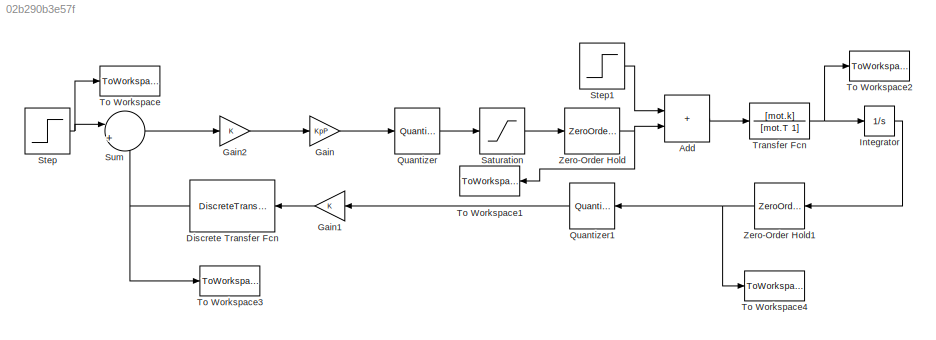
MODEL slx_02b290b3e57f
KIND model
CONFIG AbsTol = auto
CONFIG EnableMultiTasking = off
CONFIG FixedStep = auto
CONFIG MaxStep = 0.001
CONFIG MinStep = auto
CONFIG RelTol = 1e-3
CONFIG SampleTimeConstraint = Unconstrained
CONFIG SolverName = ode45
CONFIG StartTime = 0.0
CONFIG StopTime = 1
BLOCK [Sum] Add
  IconShape = rectangular
  Ports = [2, 1]
BLOCK [DiscreteTransferFcn] Discrete Transfer Fcn
  Denominator = den
  InputPortMap = u0
  Numerator = num
  Ports = [1, 1]
BLOCK [Gain] Gain
  Gain = KpP
BLOCK [Gain] Gain1
BLOCK [Gain] Gain2
BLOCK [Integrator] Integrator
  InitialCondition = w0
  Ports = [1, 1]
BLOCK [Quantizer] Quantizer
  QuantizationInterval = 20 / (2^16 - 1)
BLOCK [Quantizer] Quantizer1
  QuantizationInterval = 2 * pi / 2000
BLOCK [Saturate] Saturation
  LowerLimit = -10
  UpperLimit = 10
BLOCK [Step] Step
  After = ref.A
  SampleTime = Ts
  Time = ref.t
BLOCK [Step] Step1
  After = d.A
  SampleTime = 0
  Time = d.t
BLOCK [Sum] Sum
  Inputs = |+-
  Ports = [2, 1]
BLOCK [ToWorkspace] To Workspace
  FixptAsFi = on
  MaxDataPoints = inf
  Ports = [1]
  SampleTime = -1
  SaveFormat = Timeseries
  VariableName = w_star
BLOCK [ToWorkspace] To Workspace1
  FixptAsFi = on
  MaxDataPoints = inf
  Ports = [1]
  SampleTime = -1
  SaveFormat = Timeseries
  VariableName = u
BLOCK [ToWorkspace] To Workspace2
  FixptAsFi = on
  MaxDataPoints = inf
  Ports = [1]
  SampleTime = -1
  SaveFormat = Timeseries
  VariableName = w
BLOCK [ToWorkspace] To Workspace3
  FixptAsFi = on
  MaxDataPoints = inf
  Ports = [1]
  SampleTime = -1
  SaveFormat = Timeseries
  VariableName = wm
BLOCK [ToWorkspace] To Workspace4
  FixptAsFi = on
  MaxDataPoints = inf
  Ports = [1]
  SampleTime = -1
  SaveFormat = Timeseries
  VariableName = theta
BLOCK [TransferFcn] Transfer Fcn
  Denominator = [mot.T 1]
  Numerator = [mot.k]
BLOCK [ZeroOrderHold] Zero-Order Hold
  SampleTime = Ts
BLOCK [ZeroOrderHold] Zero-Order Hold1
  SampleTime = Ts
LINE Add:1 -> Transfer Fcn:1
NET Discrete Transfer Fcn:1 -> Sum:2, To Workspace3:1
LINE Gain1:1 -> Discrete Transfer Fcn:1
LINE Gain2:1 -> Gain:1
LINE Gain:1 -> Quantizer:1
LINE Integrator:1 -> Zero-Order Hold1:1
LINE Quantizer1:1 -> Gain1:1
LINE Quantizer:1 -> Saturation:1
LINE Saturation:1 -> Zero-Order Hold:1
LINE Step1:1 -> Add:1
NET Step:1 -> Sum:1, To Workspace:1
LINE Sum:1 -> Gain2:1
NET Transfer Fcn:1 -> Integrator:1, To Workspace2:1
NET Zero-Order Hold1:1 -> Quantizer1:1, To Workspace4:1
NET Zero-Order Hold:1 -> Add:2, To Workspace1:1
note: NET lines group one-source signal fan-out (src -> all destinations, sorted); 1:1 wires keep LINE
